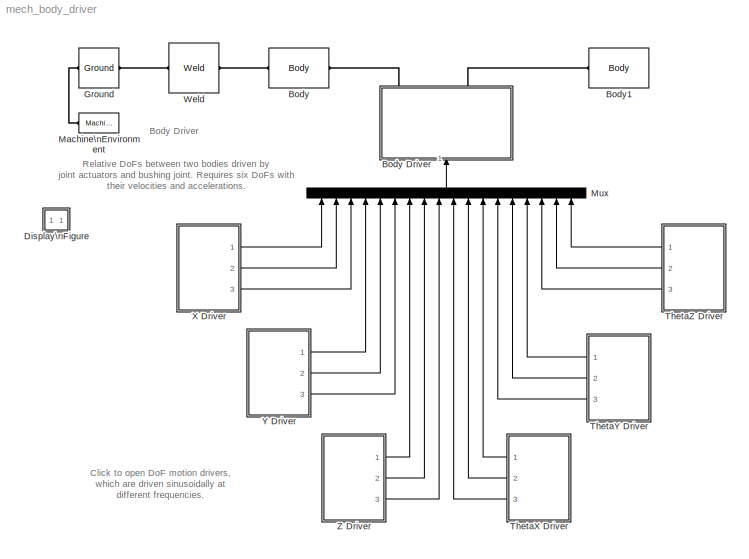
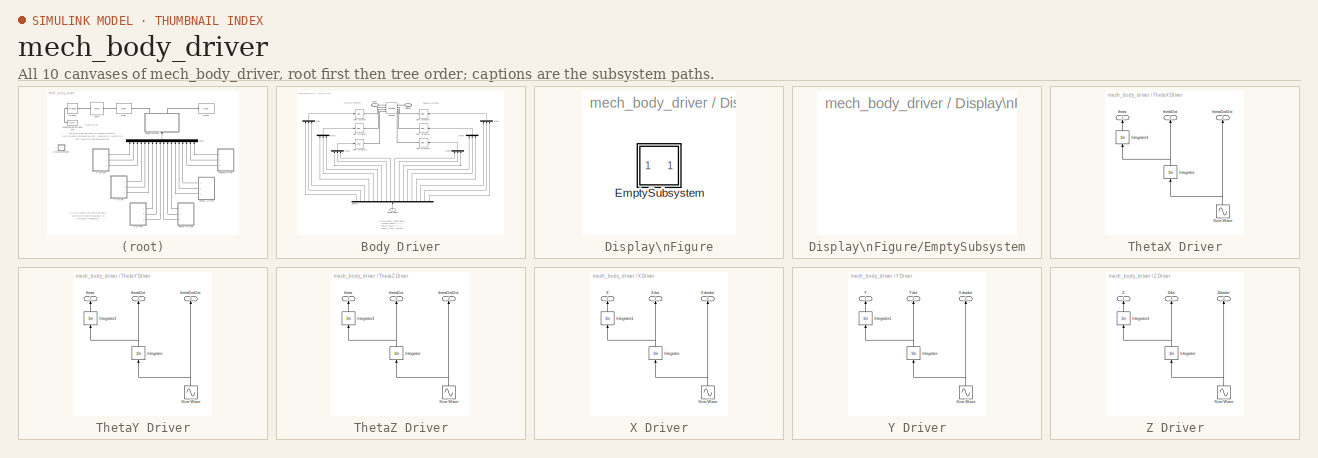
[diagram: thumbnail index - all 10 canvases of the model, root first then tree order]
MODEL mech_body_driver
KIND model
BLOCK [Reference] Body  REF=mblibv1/Bodies/Body
  AttachedToCS = 1
  BodyColor = [0.5 0.5 0.5]
  CG = Left$CG$[0 0 0]$WORLD$WORLD$m$[0 0 0]$Euler X-Y-Z$deg$WORLD$false
  CGPos = [0 0 0]
  CGRot = [0 0 0]
  CS0Pos = []
  CS0Rot = []
  CS10Pos = []
  CS10Rot = []
  CS11Pos = []
  CS11Rot = []
  CS12Pos = []
  CS12Rot = []
  CS13Pos = []
  CS13Rot = []
  CS14Pos = []
  CS14Rot = []
  CS15Pos = []
  CS15Rot = []
  CS16Pos = []
  CS16Rot = []
  CS17Pos = []
  CS17Rot = []
  CS18Pos = []
  CS18Rot = []
  CS19Pos = []
  CS19Rot = []
  CS1Pos = [0 0 0]
  CS1Rot = [0 0 0]
  CS20Pos = []
  CS20Rot = []
  CS2Pos = [0 0 0]
  CS2Rot = [0 0 0]
  CS3Pos = []
  CS3Rot = []
  CS4Pos = []
  CS4Rot = []
  CS5Pos = []
  CS5Rot = []
  CS6Pos = []
  CS6Rot = []
  CS7Pos = []
  CS7Rot = []
  CS8Pos = []
  CS8Rot = []
  CS9Pos = []
  CS9Rot = []
  ClassName = Body
  Density = 1
  DensityUnits = kg/m^3
  DensityUse = false
  DialogClass = MechanicalBodyBlock
  DialogController = MECH.DynMechDlgSource
  GraphicsMode = 1
  GraphicsObj = []
  Inertia = 0.25*eye(3)
  InertiaUnits = kg*m^2
  LConnTagsString = CS1
  LeftPortType = workingframe
  Mass = 1
  MassUnits = kg
  PhysicalDomain = mechanical
  Ports = [0, 0, 0, 0, 0, 1, 1]
  RConnTagsString = CS2
  RightPortType = workingframe
  Shape = Cylinder
  ShapeDims = [1 1]
  ShapeUnits = m
  ShapeUse = false
  SourceBlock = mblibv1/Bodies/Body
  SourceType = Body
  SubClassName = Unknown
  WorkingFrames = Left$CS1$[0 0 0]$CG$CG$m$[0 0 0]$Euler X-Y-Z$deg$WORLD$true#Right$CS2$[0 0 0]$CG$CG$m$[0 0 0]$Euler X-Y-Z$deg$WORLD$true
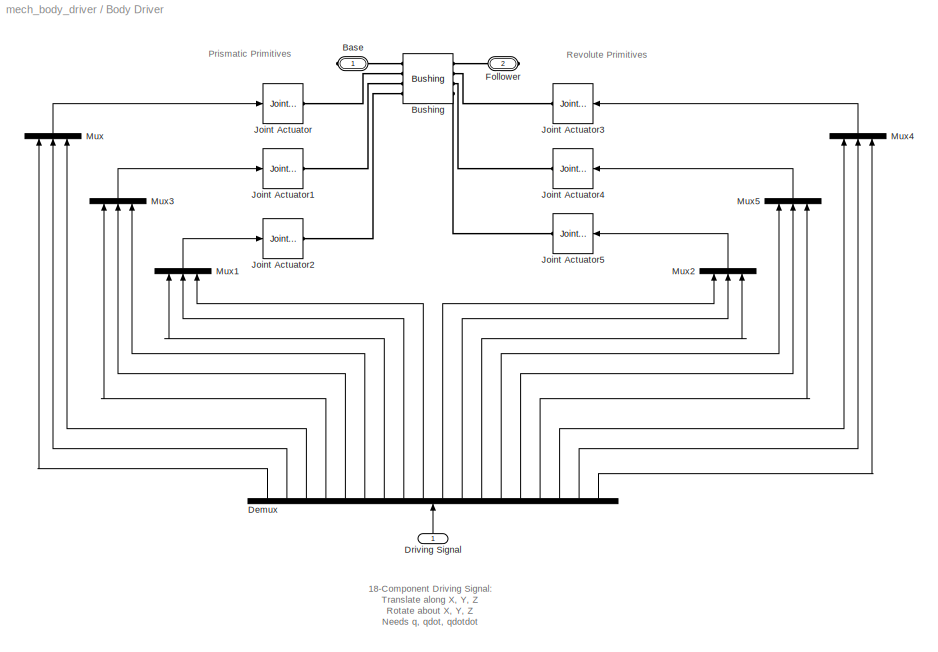
BLOCK [SubSystem] Body Driver
  FunctionWithSeparateData = off
  MaskHideContents = off
  MinAlgLoopOccurrences = off
  Opaque = off
  Ports = [1, 0, 0, 0, 0, 0, 2]
  PropExecContextOutsideSubsystem = off
  RTWSystemCode = Auto
  RequestExecContextInheritance = off
BLOCK [PMIOPort] Body Driver/Base
  Port = 1
  Side = Right
BLOCK [Reference] Body Driver/Bushing  REF=mblibv1/Joints/Bushing
  ClassName = Joint
  CutJoint = off
  DialogClass = JointBlock
  DialogController = MECH.DynMechDlgSource
  LConnTagsString = __newl0|SA1|SA2|SA3
  LeftPortType = blob
  MarkAsCut = off
  NumSAPorts = 6
  P1Axis = [1 0 0]
  P2Axis = [0 1 0]
  P3Axis = [0 0 1]
  PhysicalDomain = mechanical
  Ports = [0, 0, 0, 0, 0, 4, 4]
  PrimitiveProps = P1$WORLD$[1 0 0]$prismatic#P2$WORLD$[0 1 0]$prismatic#P3$WORLD$[0 0 1]$prismatic#R1$WORLD$[1 0 0]$revolute#R2$WORLD$[0 1 0]$revolute#R3$WORLD$[0 0 1]$revolute
  Primitives = prismatic_prismatic_prismatic_revolute_revolute_revolute
  R1Axis = [1 0 0]
  R2Axis = [0 1 0]
  R3Axis = [0 0 1]
  RConnTagsString = __newr0|SA1|SA2|SA3
  RightPortType = blob
  SourceBlock = mblibv1/Joints/Bushing
  SourceType = Bushing
  SubClassName = Unknown
BLOCK [Demux] Body Driver/Demux
  Outputs = 18
  Ports = [1, 18]
BLOCK [Inport] Body Driver/Driving Signal
  IconDisplay = Port number
  OutDataType = sfix(16)
  OutScaling = 2^0
BLOCK [PMIOPort] Body Driver/Follower
  Port = 2
  Side = Right
BLOCK [Reference] Body Driver/Joint Actuator  REF=mblibv1/Sensors & \nActuators/Joint Actuator
  AccelerationUnits = m/s^2
  ActiveIO = on
  ActuationStyle = Motion
  AngleUnits = deg
  ArcAccelerationUnits = deg/s^2
  ArcVelocityUnits = deg/s
  ClassName = JointActuator
  CoordPositionUnits = m
  DialogClass = MechanicalActuatorBlock
  DialogController = MECH.DynMechDlgSource
  ForceUnits = N
  FunctionWithSeparateData = off
  PhysicalDomain = Mechanical
  PortType = blob
  Ports = [1, 0, 0, 0, 0, 0, 1]
  Primitive = P1
  RTWMemSecDataConstants = Inherit from model
  RTWMemSecDataInternal = Inherit from model
  RTWMemSecDataParameters = Inherit from model
  RTWMemSecFuncExecute = Inherit from model
  RTWMemSecFuncInitTerm = Inherit from model
  ReferenceFrame = Absolute (INERTIAL)
  ShowPortLabels = FromPortIcon
  SourceBlock = mblibv1/Sensors & \nActuators/Joint Actuator
  SourceType = Joint Actuator
  SystemSampleTime = -1
  TorqueUnits = N-m
  VelocityUnits = m/s
  Width = 3
BLOCK [Reference] Body Driver/Joint Actuator1  REF=mblibv1/Sensors & \nActuators/Joint Actuator
  AccelerationUnits = m/s^2
  ActiveIO = on
  ActuationStyle = Motion
  AngleUnits = deg
  ArcAccelerationUnits = deg/s^2
  ArcVelocityUnits = deg/s
  ClassName = JointActuator
  CoordPositionUnits = m
  DialogClass = MechanicalActuatorBlock
  DialogController = MECH.DynMechDlgSource
  ForceUnits = N
  FunctionWithSeparateData = off
  PhysicalDomain = Mechanical
  PortType = blob
  Ports = [1, 0, 0, 0, 0, 0, 1]
  Primitive = P2
  RTWMemSecDataConstants = Inherit from model
  RTWMemSecDataInternal = Inherit from model
  RTWMemSecDataParameters = Inherit from model
  RTWMemSecFuncExecute = Inherit from model
  RTWMemSecFuncInitTerm = Inherit from model
  ReferenceFrame = Absolute (INERTIAL)
  ShowPortLabels = FromPortIcon
  SourceBlock = mblibv1/Sensors & \nActuators/Joint Actuator
  SourceType = Joint Actuator
  SystemSampleTime = -1
  TorqueUnits = N-m
  VelocityUnits = m/s
  Width = 3
BLOCK [Reference] Body Driver/Joint Actuator2  REF=mblibv1/Sensors & \nActuators/Joint Actuator
  AccelerationUnits = m/s^2
  ActiveIO = on
  ActuationStyle = Motion
  AngleUnits = deg
  ArcAccelerationUnits = deg/s^2
  ArcVelocityUnits = deg/s
  ClassName = JointActuator
  CoordPositionUnits = m
  DialogClass = MechanicalActuatorBlock
  DialogController = MECH.DynMechDlgSource
  ForceUnits = N
  FunctionWithSeparateData = off
  PhysicalDomain = Mechanical
  PortType = blob
  Ports = [1, 0, 0, 0, 0, 0, 1]
  Primitive = P3
  RTWMemSecDataConstants = Inherit from model
  RTWMemSecDataInternal = Inherit from model
  RTWMemSecDataParameters = Inherit from model
  RTWMemSecFuncExecute = Inherit from model
  RTWMemSecFuncInitTerm = Inherit from model
  ReferenceFrame = Absolute (INERTIAL)
  ShowPortLabels = FromPortIcon
  SourceBlock = mblibv1/Sensors & \nActuators/Joint Actuator
  SourceType = Joint Actuator
  SystemSampleTime = -1
  TorqueUnits = N-m
  VelocityUnits = m/s
  Width = 3
BLOCK [Reference] Body Driver/Joint Actuator3  REF=mblibv1/Sensors & \nActuators/Joint Actuator
  AccelerationUnits = m/s^2
  ActiveIO = on
  ActuationStyle = Motion
  AngleUnits = rad
  ArcAccelerationUnits = rad/s^2
  ArcVelocityUnits = rad/s
  ClassName = JointActuator
  CoordPositionUnits = m
  DialogClass = MechanicalActuatorBlock
  DialogController = MECH.DynMechDlgSource
  ForceUnits = N
  FunctionWithSeparateData = off
  PhysicalDomain = Mechanical
  PortType = blob
  Ports = [1, 0, 0, 0, 0, 0, 1]
  Primitive = R3
  RTWMemSecDataConstants = Inherit from model
  RTWMemSecDataInternal = Inherit from model
  RTWMemSecDataParameters = Inherit from model
  RTWMemSecFuncExecute = Inherit from model
  RTWMemSecFuncInitTerm = Inherit from model
  ReferenceFrame = Absolute (INERTIAL)
  ShowPortLabels = FromPortIcon
  SourceBlock = mblibv1/Sensors & \nActuators/Joint Actuator
  SourceType = Joint Actuator
  SystemSampleTime = -1
  TorqueUnits = N-m
  VelocityUnits = m/s
  Width = 3
BLOCK [Reference] Body Driver/Joint Actuator4  REF=mblibv1/Sensors & \nActuators/Joint Actuator
  AccelerationUnits = m/s^2
  ActiveIO = on
  ActuationStyle = Motion
  AngleUnits = rad
  ArcAccelerationUnits = rad/s^2
  ArcVelocityUnits = rad/s
  ClassName = JointActuator
  CoordPositionUnits = m
  DialogClass = MechanicalActuatorBlock
  DialogController = MECH.DynMechDlgSource
  ForceUnits = N
  FunctionWithSeparateData = off
  PhysicalDomain = Mechanical
  PortType = blob
  Ports = [1, 0, 0, 0, 0, 0, 1]
  Primitive = R2
  RTWMemSecDataConstants = Inherit from model
  RTWMemSecDataInternal = Inherit from model
  RTWMemSecDataParameters = Inherit from model
  RTWMemSecFuncExecute = Inherit from model
  RTWMemSecFuncInitTerm = Inherit from model
  ReferenceFrame = Absolute (INERTIAL)
  ShowPortLabels = FromPortIcon
  SourceBlock = mblibv1/Sensors & \nActuators/Joint Actuator
  SourceType = Joint Actuator
  SystemSampleTime = -1
  TorqueUnits = N-m
  VelocityUnits = m/s
  Width = 3
BLOCK [Reference] Body Driver/Joint Actuator5  REF=mblibv1/Sensors & \nActuators/Joint Actuator
  AccelerationUnits = m/s^2
  ActiveIO = on
  ActuationStyle = Motion
  AngleUnits = rad
  ArcAccelerationUnits = rad/s^2
  ArcVelocityUnits = rad/s
  ClassName = JointActuator
  CoordPositionUnits = m
  DialogClass = MechanicalActuatorBlock
  DialogController = MECH.DynMechDlgSource
  ForceUnits = N
  FunctionWithSeparateData = off
  PhysicalDomain = Mechanical
  PortType = blob
  Ports = [1, 0, 0, 0, 0, 0, 1]
  Primitive = R1
  RTWMemSecDataConstants = Inherit from model
  RTWMemSecDataInternal = Inherit from model
  RTWMemSecDataParameters = Inherit from model
  RTWMemSecFuncExecute = Inherit from model
  RTWMemSecFuncInitTerm = Inherit from model
  ReferenceFrame = Absolute (INERTIAL)
  ShowPortLabels = FromPortIcon
  SourceBlock = mblibv1/Sensors & \nActuators/Joint Actuator
  SourceType = Joint Actuator
  SystemSampleTime = -1
  TorqueUnits = N-m
  VelocityUnits = m/s
  Width = 3
BLOCK [Mux] Body Driver/Mux
  DisplayOption = bar
  Inputs = 3
  Ports = [3, 1]
BLOCK [Mux] Body Driver/Mux1
  DisplayOption = bar
  Inputs = 3
  Ports = [3, 1]
BLOCK [Mux] Body Driver/Mux2
  DisplayOption = bar
  Inputs = 3
  Ports = [3, 1]
BLOCK [Mux] Body Driver/Mux3
  DisplayOption = bar
  Inputs = 3
  Ports = [3, 1]
BLOCK [Mux] Body Driver/Mux4
  DisplayOption = bar
  Inputs = 3
  Ports = [3, 1]
BLOCK [Mux] Body Driver/Mux5
  DisplayOption = bar
  Inputs = 3
  Ports = [3, 1]
BLOCK [Reference] Body1  REF=mblibv1/Bodies/Body
  AttachedToCS = 1
  BodyColor = [0.5 0.5 0.5]
  CG = Left$CG$[1 1 1]$WORLD$WORLD$m$[0 0 0]$Euler X-Y-Z$deg$WORLD$false
  CGPos = [1 1 1]
  CGRot = [0 0 0]
  CS0Pos = []
  CS0Rot = []
  CS10Pos = []
  CS10Rot = []
  CS11Pos = []
  CS11Rot = []
  CS12Pos = []
  CS12Rot = []
  CS13Pos = []
  CS13Rot = []
  CS14Pos = []
  CS14Rot = []
  CS15Pos = []
  CS15Rot = []
  CS16Pos = []
  CS16Rot = []
  CS17Pos = []
  CS17Rot = []
  CS18Pos = []
  CS18Rot = []
  CS19Pos = []
  CS19Rot = []
  CS1Pos = [0 0 0]
  CS1Rot = [0 0 0]
  CS20Pos = []
  CS20Rot = []
  CS2Pos = []
  CS2Rot = []
  CS3Pos = []
  CS3Rot = []
  CS4Pos = []
  CS4Rot = []
  CS5Pos = []
  CS5Rot = []
  CS6Pos = []
  CS6Rot = []
  CS7Pos = []
  CS7Rot = []
  CS8Pos = []
  CS8Rot = []
  CS9Pos = []
  CS9Rot = []
  ClassName = Body
  Density = 1
  DensityUnits = kg/m^3
  DensityUse = false
  DialogClass = MechanicalBodyBlock
  DialogController = MECH.DynMechDlgSource
  GraphicsMode = 1
  GraphicsObj = []
  Inertia = [1.5 0 0; 0 1.0 0; 0 0 2.0]
  InertiaUnits = kg*m^2
  LConnTagsString = CS1
  LeftPortType = workingframe
  Mass = 1
  MassUnits = kg
  PhysicalDomain = mechanical
  Ports = [0, 0, 0, 0, 0, 1]
  RightPortType = workingframe
  Shape = Cylinder
  ShapeDims = [1 1]
  ShapeUnits = m
  ShapeUse = false
  SourceBlock = mblibv1/Bodies/Body
  SourceType = Body
  SubClassName = Unknown
  WorkingFrames = Left$CS1$[0 0 0]$CG$CG$m$[0 0 0]$Euler X-Y-Z$deg$WORLD$true
BLOCK [SubSystem] Display\nFigure
  Description = Help callback for body driver model: mech_body_driver.  Opens Help browser to Type 19 marker at documentation for this tutorial model.
  FunctionWithSeparateData = off
  MaskDisplay = image(imread('info.bmp'))
  MaskHideContents = off
  MaskIconFrame = off
  MaskIconOpaque = on
  MaskIconRotate = none
  MaskIconUnits = normalized
  MaskSelfModifiable = on
  MaskType = Help callback
  MinAlgLoopOccurrences = off
  Opaque = off
  OpenFcn = helpview([docroot '/toolbox/physmod/mech/mech.map'], 'mech_body_driver_help');
  Ports = []
  PropExecContextOutsideSubsystem = off
  RTWSystemCode = Auto
  RequestExecContextInheritance = off
  Tag = Help
BLOCK [SubSystem] Display\nFigure/EmptySubsystem
  FunctionWithSeparateData = off
  MaskHideContents = off
  MinAlgLoopOccurrences = off
  Opaque = off
  Ports = []
  PropExecContextOutsideSubsystem = off
  RTWSystemCode = Auto
  RequestExecContextInheritance = off
BLOCK [Reference] Ground  REF=mblibv1/Bodies/Ground
  ClassName = Ground
  CoordPosition = [0 0 0]
  CoordPositionUnits = m
  DialogClass = GroundBlock
  DialogController = MECH.DynMechDlgSource
  FunctionWithSeparateData = off
  LeftPortType = env
  MachineId = [0 0]
  PhysicalDomain = Mechanical
  Ports = [0, 0, 0, 0, 0, 1, 1]
  RTWMemSecDataConstants = Inherit from model
  RTWMemSecDataInternal = Inherit from model
  RTWMemSecDataParameters = Inherit from model
  RTWMemSecFuncExecute = Inherit from model
  RTWMemSecFuncInitTerm = Inherit from model
  RightPortType = workingframe
  ShowEnvPort = on
  ShowPortLabels = FromPortIcon
  SourceBlock = mblibv1/Bodies/Ground
  SourceType = Ground
  StateVectorMgrId = -1
  SystemSampleTime = -1
  UserData = DataTag0
  UserDataPersistent = on
BLOCK [Reference] Machine\nEnvironment  REF=mblibv1/Bodies/Machine\nEnvironment
  AnalysisType = Forward dynamics
  AngularAssemblyTolerance = 1e-3
  AngularAssemblyToleranceUnits = rad
  ClassName = Environment
  ConstraintAbsTolerance = 1e-4
  ConstraintRelTolerance = 1e-4
  ConstraintSolverType = Stabilizing
  DialogController = MECH.DialogSource
  DialogTemplateClass = MECH.MachineEnvironment
  Dimensionality = 3D Only
  FunctionWithSeparateData = off
  Gravity = [0 0 0]
  GravityAsSignal = off
  GravityUnits = m/s^2
  LinearAssemblyTolerance = 1e-3
  LinearAssemblyToleranceUnits = m
  PerturbationSize = 1e-5
  PhysicalDomain = Mechanical
  PortType = env
  Ports = [0, 0, 0, 0, 0, 0, 1]
  RTWMemSecDataConstants = Inherit from model
  RTWMemSecDataInternal = Inherit from model
  RTWMemSecDataParameters = Inherit from model
  RTWMemSecFuncExecute = Inherit from model
  RTWMemSecFuncInitTerm = Inherit from model
  RedundancyAnalysisTolerance = 1e-14
  RedundancyAnalysisToleranceType = Automatically select tolerance
  ShowPortLabels = FromPortIcon
  SourceBlock = mblibv1/Bodies/Machine\nEnvironment
  SourceType = Machine Environment
  StatePerturbationType = Fixed
  SyncWhenCopied = off
  SystemSampleTime = -1
  Tag = Factory ground
  UseRobustSingularityHandling = off
  VisualizeMachine = on
BLOCK [Mux] Mux
  DisplayOption = bar
  Inputs = 18
  Ports = [18, 1]
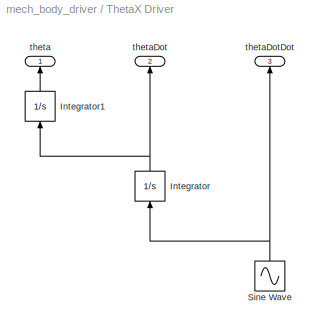
BLOCK [SubSystem] ThetaX Driver
  FunctionWithSeparateData = off
  MaskHideContents = off
  MinAlgLoopOccurrences = off
  Opaque = off
  Ports = [0, 3]
  PropExecContextOutsideSubsystem = off
  RTWSystemCode = Auto
  RequestExecContextInheritance = off
BLOCK [Integrator] ThetaX Driver/Integrator
  Ports = [1, 1]
BLOCK [Integrator] ThetaX Driver/Integrator1
  Ports = [1, 1]
BLOCK [Sin] ThetaX Driver/Sine Wave
  Amplitude = -(pi/4)*(2*pi/16)^2
  Frequency = 2*pi/16
  Phase = pi/2
  Ports = [0, 1]
  SampleTime = 0
BLOCK [Outport] ThetaX Driver/theta
  IconDisplay = Port number
  OutDataType = sfix(16)
  OutScaling = 2^0
BLOCK [Outport] ThetaX Driver/thetaDot
  IconDisplay = Port number
  OutDataType = sfix(16)
  OutScaling = 2^0
  Port = 2
BLOCK [Outport] ThetaX Driver/thetaDotDot
  IconDisplay = Port number
  OutDataType = sfix(16)
  OutScaling = 2^0
  Port = 3
BLOCK [SubSystem] ThetaY Driver
  FunctionWithSeparateData = off
  MaskHideContents = off
  MinAlgLoopOccurrences = off
  Opaque = off
  Ports = [0, 3]
  PropExecContextOutsideSubsystem = off
  RTWSystemCode = Auto
  RequestExecContextInheritance = off
BLOCK [Integrator] ThetaY Driver/Integrator
  Ports = [1, 1]
BLOCK [Integrator] ThetaY Driver/Integrator1
  Ports = [1, 1]
BLOCK [Sin] ThetaY Driver/Sine Wave
  Amplitude = -(pi/4)*(2*pi/8)^2
  Frequency = 2*pi/8
  Phase = pi/2
  Ports = [0, 1]
  SampleTime = 0
BLOCK [Outport] ThetaY Driver/theta
  IconDisplay = Port number
  OutDataType = sfix(16)
  OutScaling = 2^0
BLOCK [Outport] ThetaY Driver/thetaDot
  IconDisplay = Port number
  OutDataType = sfix(16)
  OutScaling = 2^0
  Port = 2
BLOCK [Outport] ThetaY Driver/thetaDotDot
  IconDisplay = Port number
  OutDataType = sfix(16)
  OutScaling = 2^0
  Port = 3
BLOCK [SubSystem] ThetaZ Driver
  FunctionWithSeparateData = off
  MaskHideContents = off
  MinAlgLoopOccurrences = off
  Opaque = off
  Ports = [0, 3]
  PropExecContextOutsideSubsystem = off
  RTWSystemCode = Auto
  RequestExecContextInheritance = off
BLOCK [Integrator] ThetaZ Driver/Integrator
  Ports = [1, 1]
BLOCK [Integrator] ThetaZ Driver/Integrator1
  Ports = [1, 1]
BLOCK [Sin] ThetaZ Driver/Sine Wave
  Amplitude = -(pi/4)*(2*pi/4)^2
  Frequency = 2*pi/4
  Phase = pi/2
  Ports = [0, 1]
  SampleTime = 0
BLOCK [Outport] ThetaZ Driver/theta
  IconDisplay = Port number
  OutDataType = sfix(16)
  OutScaling = 2^0
BLOCK [Outport] ThetaZ Driver/thetaDot
  IconDisplay = Port number
  OutDataType = sfix(16)
  OutScaling = 2^0
  Port = 2
BLOCK [Outport] ThetaZ Driver/thetaDotDot
  IconDisplay = Port number
  OutDataType = sfix(16)
  OutScaling = 2^0
  Port = 3
BLOCK [Reference] Weld  REF=mblibv1/Joints/Weld
  ClassName = Joint
  CutJoint = off
  DialogClass = JointBlock
  DialogController = MECH.DynMechDlgSource
  LConnTagsString = __newl0
  LeftPortType = blob
  MarkAsCut = off
  NumSAPorts = 0
  PhysicalDomain = mechanical
  Ports = [0, 0, 0, 0, 0, 1, 1]
  PrimitiveProps = W$INERTIAL$[0 0 0]$weld
  Primitives = weld
  RConnTagsString = __newr0
  RightPortType = blob
  SourceBlock = mblibv1/Joints/Weld
  SourceType = Weld
  SubClassName = Unknown
  WAxis = [0 0 0]
BLOCK [SubSystem] X Driver
  FunctionWithSeparateData = off
  MaskHideContents = off
  MinAlgLoopOccurrences = off
  Opaque = off
  Ports = [0, 3]
  PropExecContextOutsideSubsystem = off
  RTWSystemCode = Auto
  RequestExecContextInheritance = off
BLOCK [Integrator] X Driver/Integrator
  Ports = [1, 1]
BLOCK [Integrator] X Driver/Integrator1
  Ports = [1, 1]
BLOCK [Sin] X Driver/Sine Wave
  Amplitude = -1.0*(2*pi/32)^2
  Frequency = 2*pi/32
  Phase = pi/2
  Ports = [0, 1]
  SampleTime = 0
BLOCK [Outport] X Driver/X
  IconDisplay = Port number
  OutDataType = sfix(16)
  OutScaling = 2^0
BLOCK [Outport] X Driver/Xdot
  IconDisplay = Port number
  OutDataType = sfix(16)
  OutScaling = 2^0
  Port = 2
BLOCK [Outport] X Driver/Xdotdot
  IconDisplay = Port number
  OutDataType = sfix(16)
  OutScaling = 2^0
  Port = 3
BLOCK [SubSystem] Y Driver
  FunctionWithSeparateData = off
  MaskHideContents = off
  MinAlgLoopOccurrences = off
  Opaque = off
  Ports = [0, 3]
  PropExecContextOutsideSubsystem = off
  RTWSystemCode = Auto
  RequestExecContextInheritance = off
BLOCK [Integrator] Y Driver/Integrator
  Ports = [1, 1]
BLOCK [Integrator] Y Driver/Integrator1
  Ports = [1, 1]
BLOCK [Sin] Y Driver/Sine Wave
  Amplitude = -1.0*(2*pi/16)^2
  Frequency = 2*pi/16
  Phase = pi/2
  Ports = [0, 1]
  SampleTime = 0
BLOCK [Outport] Y Driver/Xdotdot
  IconDisplay = Port number
  OutDataType = sfix(16)
  OutScaling = 2^0
  Port = 3
BLOCK [Outport] Y Driver/Y
  IconDisplay = Port number
  OutDataType = sfix(16)
  OutScaling = 2^0
BLOCK [Outport] Y Driver/Ydot
  IconDisplay = Port number
  OutDataType = sfix(16)
  OutScaling = 2^0
  Port = 2
BLOCK [SubSystem] Z Driver
  FunctionWithSeparateData = off
  MaskHideContents = off
  MinAlgLoopOccurrences = off
  Opaque = off
  Ports = [0, 3]
  PropExecContextOutsideSubsystem = off
  RTWSystemCode = Auto
  RequestExecContextInheritance = off
BLOCK [Integrator] Z Driver/Integrator
  Ports = [1, 1]
BLOCK [Integrator] Z Driver/Integrator1
  Ports = [1, 1]
BLOCK [Sin] Z Driver/Sine Wave
  Amplitude = -1.0*(2*pi/4)^2
  Frequency = 2*pi/4
  Phase = pi/2
  Ports = [0, 1]
  SampleTime = 0
BLOCK [Outport] Z Driver/Z
  IconDisplay = Port number
  OutDataType = sfix(16)
  OutScaling = 2^0
BLOCK [Outport] Z Driver/Zdot
  IconDisplay = Port number
  OutDataType = sfix(16)
  OutScaling = 2^0
  Port = 2
BLOCK [Outport] Z Driver/Zdotdot
  IconDisplay = Port number
  OutDataType = sfix(16)
  OutScaling = 2^0
  Port = 3
ANNOTATION (root): Body Driver
ANNOTATION (root): Click to open DoF motion drivers,\nwhich are driven sinusoidally at\ndifferent frequencies.
ANNOTATION (root): Relative DoFs between two bodies driven by\njoint actuators and bushing joint. Requires six DoFs with\ntheir velocities and accelerations.
ANNOTATION Body Driver: 18-Component Driving Signal:\nTranslate along X, Y, Z\nRotate about X, Y, Z\nNeeds q, qdot, qdotdot
ANNOTATION Body Driver: Prismatic Primitives
ANNOTATION Body Driver: Revolute Primitives
LINE Body Driver/Demux:1 -> Body Driver/Mux:1
LINE Body Driver/Demux:10 -> Body Driver/Mux2:1
LINE Body Driver/Demux:11 -> Body Driver/Mux2:2
LINE Body Driver/Demux:12 -> Body Driver/Mux2:3
LINE Body Driver/Demux:13 -> Body Driver/Mux5:1
LINE Body Driver/Demux:14 -> Body Driver/Mux5:2
LINE Body Driver/Demux:15 -> Body Driver/Mux5:3
LINE Body Driver/Demux:16 -> Body Driver/Mux4:1
LINE Body Driver/Demux:17 -> Body Driver/Mux4:2
LINE Body Driver/Demux:18 -> Body Driver/Mux4:3
LINE Body Driver/Demux:2 -> Body Driver/Mux:2
LINE Body Driver/Demux:3 -> Body Driver/Mux:3
LINE Body Driver/Demux:4 -> Body Driver/Mux3:1
LINE Body Driver/Demux:5 -> Body Driver/Mux3:2
LINE Body Driver/Demux:6 -> Body Driver/Mux3:3
LINE Body Driver/Demux:7 -> Body Driver/Mux1:1
LINE Body Driver/Demux:8 -> Body Driver/Mux1:2
LINE Body Driver/Demux:9 -> Body Driver/Mux1:3
LINE Body Driver/Driving Signal:1 -> Body Driver/Demux:1
LINE Body Driver/Mux1:1 -> Body Driver/Joint Actuator2:1
LINE Body Driver/Mux2:1 -> Body Driver/Joint Actuator5:1
LINE Body Driver/Mux3:1 -> Body Driver/Joint Actuator1:1
LINE Body Driver/Mux4:1 -> Body Driver/Joint Actuator3:1
LINE Body Driver/Mux5:1 -> Body Driver/Joint Actuator4:1
LINE Body Driver/Mux:1 -> Body Driver/Joint Actuator:1
LINE Mux:1 -> Body Driver:1
LINE ThetaX Driver/Integrator1:1 -> ThetaX Driver/theta:1
NET ThetaX Driver/Integrator:1 -> ThetaX Driver/Integrator1:1, ThetaX Driver/thetaDot:1
NET ThetaX Driver/Sine Wave:1 -> ThetaX Driver/Integrator:1, ThetaX Driver/thetaDotDot:1
LINE ThetaX Driver:1 -> Mux:12
LINE ThetaX Driver:2 -> Mux:11
LINE ThetaX Driver:3 -> Mux:10
LINE ThetaY Driver/Integrator1:1 -> ThetaY Driver/theta:1
NET ThetaY Driver/Integrator:1 -> ThetaY Driver/Integrator1:1, ThetaY Driver/thetaDot:1
NET ThetaY Driver/Sine Wave:1 -> ThetaY Driver/Integrator:1, ThetaY Driver/thetaDotDot:1
LINE ThetaY Driver:1 -> Mux:15
LINE ThetaY Driver:2 -> Mux:14
LINE ThetaY Driver:3 -> Mux:13
LINE ThetaZ Driver/Integrator1:1 -> ThetaZ Driver/theta:1
NET ThetaZ Driver/Integrator:1 -> ThetaZ Driver/Integrator1:1, ThetaZ Driver/thetaDot:1
NET ThetaZ Driver/Sine Wave:1 -> ThetaZ Driver/Integrator:1, ThetaZ Driver/thetaDotDot:1
LINE ThetaZ Driver:1 -> Mux:18
LINE ThetaZ Driver:2 -> Mux:17
LINE ThetaZ Driver:3 -> Mux:16
LINE X Driver/Integrator1:1 -> X Driver/X:1
NET X Driver/Integrator:1 -> X Driver/Integrator1:1, X Driver/Xdot:1
NET X Driver/Sine Wave:1 -> X Driver/Integrator:1, X Driver/Xdotdot:1
LINE X Driver:1 -> Mux:1
LINE X Driver:2 -> Mux:2
LINE X Driver:3 -> Mux:3
LINE Y Driver/Integrator1:1 -> Y Driver/Y:1
NET Y Driver/Integrator:1 -> Y Driver/Integrator1:1, Y Driver/Ydot:1
NET Y Driver/Sine Wave:1 -> Y Driver/Integrator:1, Y Driver/Xdotdot:1
LINE Y Driver:1 -> Mux:4
LINE Y Driver:2 -> Mux:5
LINE Y Driver:3 -> Mux:6
LINE Z Driver/Integrator1:1 -> Z Driver/Z:1
NET Z Driver/Integrator:1 -> Z Driver/Integrator1:1, Z Driver/Zdot:1
NET Z Driver/Sine Wave:1 -> Z Driver/Integrator:1, Z Driver/Zdotdot:1
LINE Z Driver:1 -> Mux:7
LINE Z Driver:2 -> Mux:8
LINE Z Driver:3 -> Mux:9
PLINE Body Driver/Base:RConn1 -- Body Driver/Bushing:LConn1
PLINE Body Driver/Bushing:LConn2 -- Body Driver/Joint Actuator:RConn1
PLINE Body Driver/Bushing:LConn3 -- Body Driver/Joint Actuator1:RConn1
PLINE Body Driver/Bushing:LConn4 -- Body Driver/Joint Actuator2:RConn1
PLINE Body Driver/Bushing:RConn1 -- Body Driver/Follower:RConn1
PLINE Body Driver/Bushing:RConn2 -- Body Driver/Joint Actuator3:RConn1
PLINE Body Driver/Bushing:RConn3 -- Body Driver/Joint Actuator4:RConn1
PLINE Body Driver/Bushing:RConn4 -- Body Driver/Joint Actuator5:RConn1
PLINE Body Driver:RConn1 -- Body:RConn1
PLINE Body Driver:RConn2 -- Body1:LConn1
PLINE Body:LConn1 -- Weld:RConn1
PLINE Ground:LConn1 -- Machine\nEnvironment:RConn1
PLINE Ground:RConn1 -- Weld:LConn1
note: NET lines group one-source signal fan-out (src -> all destinations, sorted); 1:1 wires keep LINE
